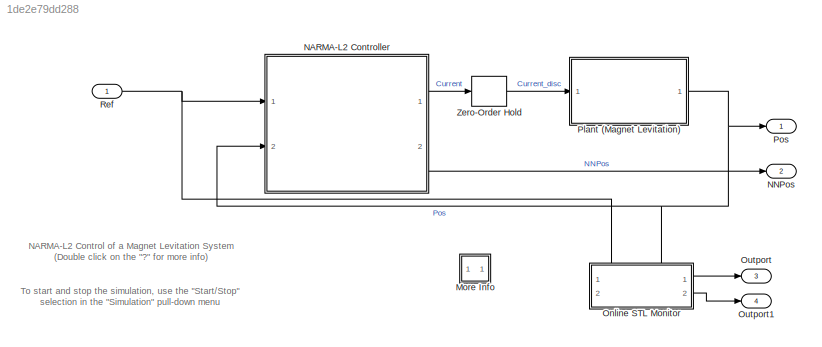
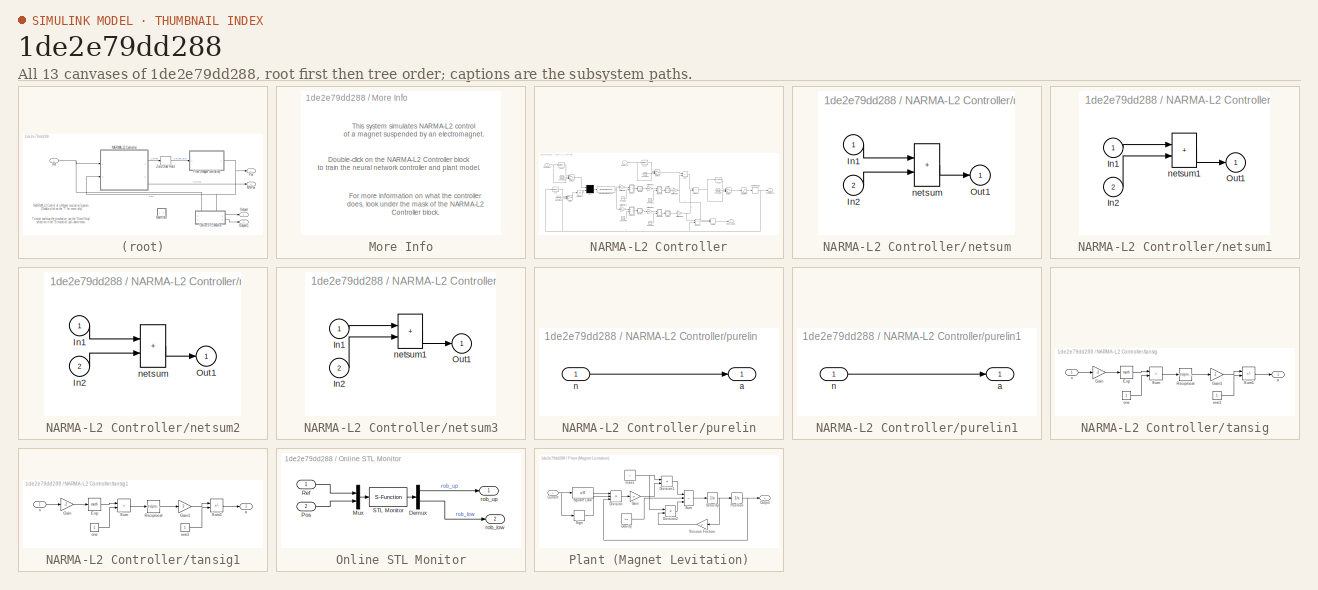
[diagram: thumbnail index - all 13 canvases of the model, root first then tree order]
MODEL slx_1de2e79dd288
KIND model
CONFIG AbsTol = 1e-6
CONFIG EnableMultiTasking = off
CONFIG FixedStep = auto
CONFIG MaxStep = auto
CONFIG MinStep = auto
CONFIG RelTol = 1e-3
CONFIG SampleTimeConstraint = Unconstrained
CONFIG SolverName = ode45
CONFIG StartTime = 0.0
CONFIG StopTime = 20
BLOCK [SubSystem] More Info
  Ports = []
  RequestExecContextInheritance = off
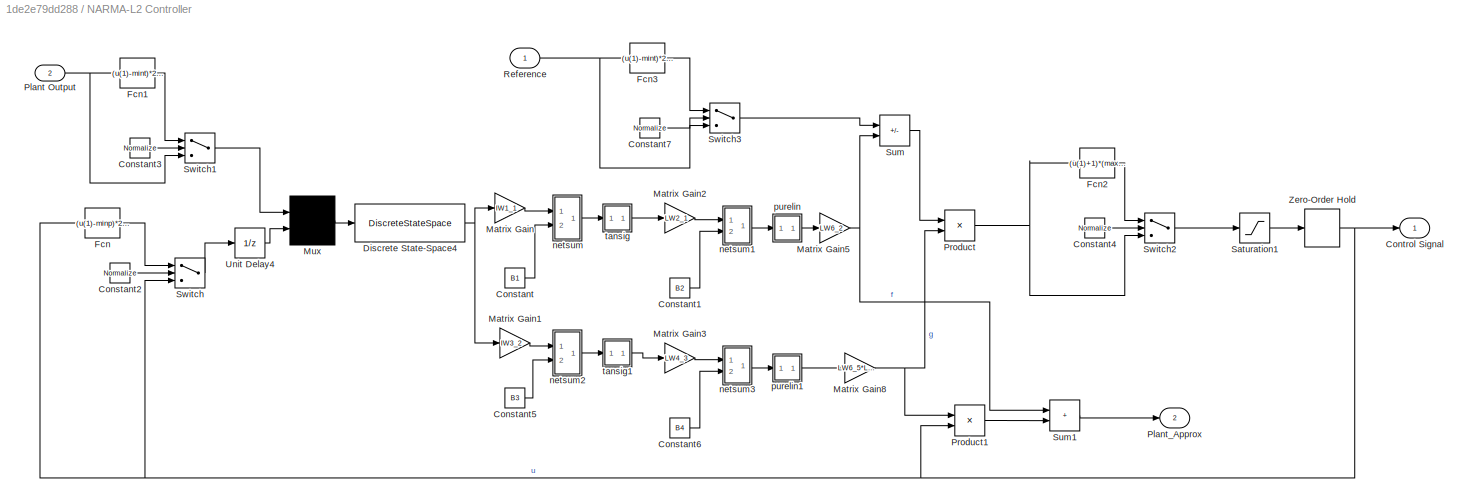
BLOCK [SubSystem] NARMA-L2 Controller
  NameLocation = top
  OpenFcn = nncontrolutil('nnident','',gcbh,gcb,'narma_l2');
  Ports = [2, 2]
  RequestExecContextInheritance = off
BLOCK [Constant] NARMA-L2 Controller/Constant
  Value = B1
BLOCK [Constant] NARMA-L2 Controller/Constant1
  Value = B2
BLOCK [Constant] NARMA-L2 Controller/Constant2
  Value = Normalize
BLOCK [Constant] NARMA-L2 Controller/Constant3
  Value = Normalize
BLOCK [Constant] NARMA-L2 Controller/Constant4
  Value = Normalize
BLOCK [Constant] NARMA-L2 Controller/Constant5
  Value = B3
BLOCK [Constant] NARMA-L2 Controller/Constant6
  Value = B4
BLOCK [Constant] NARMA-L2 Controller/Constant7
  Value = Normalize
BLOCK [Outport] NARMA-L2 Controller/Control Signal
BLOCK [DiscreteStateSpace] NARMA-L2 Controller/Discrete State-Space4
  A = blkdiag([zeros(1,Nj-1);eye(Nj-2,Nj-2) zeros(Nj-2,1)],[zeros(1,Ni-1);eye(Ni-2,Ni-2) zeros(Ni-2,1)])
  B = blkdiag(eye(Nj-1,1),eye(Ni-1,1))
  C = blkdiag([zeros(1,Nj-1);eye(Nj-1,Nj-1)],[zeros(eye(double(Ni>1)),Ni-1);eye(Ni-2,Ni-1)])
  D = blkdiag([1;zeros(Nj-1,1)],[eye(double(Ni>1));zeros(Ni-2,1)])
  SampleTime = Ts
BLOCK [Fcn] NARMA-L2 Controller/Fcn
  Expr = (u(1)-minp)*2/(maxp-minp) - 1
BLOCK [Fcn] NARMA-L2 Controller/Fcn1
  Expr = (u(1)-mint)*2/(maxt-mint) - 1
BLOCK [Fcn] NARMA-L2 Controller/Fcn2
  Expr = (u(1)+1)*(maxp-minp)/2 + minp
BLOCK [Fcn] NARMA-L2 Controller/Fcn3
  Expr = (u(1)-mint)*2/(maxt-mint) - 1
BLOCK [Gain] NARMA-L2 Controller/Matrix Gain
  Gain = IW1_1
  Multiplication = Matrix(K*u)
  OutDataTypeStr = Inherit: Same as input
  ParamDataTypeStr = Inherit: Same as input
  SaturateOnIntegerOverflow = on
BLOCK [Gain] NARMA-L2 Controller/Matrix Gain1
  Gain = IW3_2
  Multiplication = Matrix(K*u)
  OutDataTypeStr = Inherit: Same as input
  ParamDataTypeStr = Inherit: Same as input
  SaturateOnIntegerOverflow = on
BLOCK [Gain] NARMA-L2 Controller/Matrix Gain2
  Gain = LW2_1
  Multiplication = Matrix(K*u)
  OutDataTypeStr = Inherit: Same as input
  ParamDataTypeStr = Inherit: Same as input
  SaturateOnIntegerOverflow = on
BLOCK [Gain] NARMA-L2 Controller/Matrix Gain3
  Gain = LW4_3
  Multiplication = Matrix(K*u)
  OutDataTypeStr = Inherit: Same as input
  ParamDataTypeStr = Inherit: Same as input
  SaturateOnIntegerOverflow = on
BLOCK [Gain] NARMA-L2 Controller/Matrix Gain5
  Gain = LW6_2
  Multiplication = Matrix(K*u)
  OutDataTypeStr = Inherit: Same as input
  ParamDataTypeStr = Inherit: Same as input
  SaturateOnIntegerOverflow = on
BLOCK [Gain] NARMA-L2 Controller/Matrix Gain8
  Gain = LW6_5*LW5_4*IW5_3
  Multiplication = Matrix(K*u)
  OutDataTypeStr = Inherit: Same as input
  ParamDataTypeStr = Inherit: Same as input
  SaturateOnIntegerOverflow = on
BLOCK [Mux] NARMA-L2 Controller/Mux
  DisplayOption = signals
  Inputs = 2
  Ports = [2, 1]
BLOCK [Inport] NARMA-L2 Controller/Plant Output
  Port = 2
BLOCK [Outport] NARMA-L2 Controller/Plant_Approx
  Port = 2
BLOCK [Product] NARMA-L2 Controller/Product
  InputSameDT = on
  Inputs = */
  OutDataTypeStr = Inherit: Same as first input
  Ports = [2, 1]
  SaturateOnIntegerOverflow = on
BLOCK [Product] NARMA-L2 Controller/Product1
  InputSameDT = on
  OutDataTypeStr = Inherit: Same as first input
  Ports = [2, 1]
  SaturateOnIntegerOverflow = on
BLOCK [Inport] NARMA-L2 Controller/Reference
BLOCK [Saturate] NARMA-L2 Controller/Saturation1
  LowerLimit = min_i
  UpperLimit = max_i
  ZeroCross = off
BLOCK [Sum] NARMA-L2 Controller/Sum
  IconShape = rectangular
  InputSameDT = on
  Inputs = +-
  OutDataTypeStr = Inherit: Same as first input
  Ports = [2, 1]
  SaturateOnIntegerOverflow = on
BLOCK [Sum] NARMA-L2 Controller/Sum1
  IconShape = rectangular
  InputSameDT = on
  OutDataTypeStr = Inherit: Same as first input
  Ports = [2, 1]
  SaturateOnIntegerOverflow = on
BLOCK [Switch] NARMA-L2 Controller/Switch
  Threshold = 0.5
  ZeroCross = off
BLOCK [Switch] NARMA-L2 Controller/Switch1
  Threshold = 0.5
  ZeroCross = off
BLOCK [Switch] NARMA-L2 Controller/Switch2
  Threshold = 0.5
  ZeroCross = off
BLOCK [Switch] NARMA-L2 Controller/Switch3
  Threshold = 0.5
  ZeroCross = off
BLOCK [UnitDelay] NARMA-L2 Controller/Unit Delay4
  HasFrameUpgradeWarning = on
  SampleTime = Ts
BLOCK [ZeroOrderHold] NARMA-L2 Controller/Zero-Order Hold
  SampleTime = Ts
BLOCK [SubSystem] NARMA-L2 Controller/netsum
  Ports = [2, 1]
  RequestExecContextInheritance = off
BLOCK [Inport] NARMA-L2 Controller/netsum/In1
BLOCK [Inport] NARMA-L2 Controller/netsum/In2
  Port = 2
BLOCK [Outport] NARMA-L2 Controller/netsum/Out1
BLOCK [Sum] NARMA-L2 Controller/netsum/netsum
  IconShape = rectangular
  InputSameDT = on
  Inputs = 2
  OutDataTypeStr = Inherit: Same as first input
  Ports = [2, 1]
  SaturateOnIntegerOverflow = on
BLOCK [SubSystem] NARMA-L2 Controller/netsum1
  Ports = [2, 1]
  RequestExecContextInheritance = off
BLOCK [Inport] NARMA-L2 Controller/netsum1/In1
BLOCK [Inport] NARMA-L2 Controller/netsum1/In2
  Port = 2
BLOCK [Outport] NARMA-L2 Controller/netsum1/Out1
BLOCK [Sum] NARMA-L2 Controller/netsum1/netsum1
  IconShape = rectangular
  InputSameDT = on
  Inputs = 2
  OutDataTypeStr = Inherit: Same as first input
  Ports = [2, 1]
  SaturateOnIntegerOverflow = on
BLOCK [SubSystem] NARMA-L2 Controller/netsum2
  Ports = [2, 1]
  RequestExecContextInheritance = off
BLOCK [Inport] NARMA-L2 Controller/netsum2/In1
BLOCK [Inport] NARMA-L2 Controller/netsum2/In2
  Port = 2
BLOCK [Outport] NARMA-L2 Controller/netsum2/Out1
BLOCK [Sum] NARMA-L2 Controller/netsum2/netsum
  IconShape = rectangular
  InputSameDT = on
  Inputs = 2
  OutDataTypeStr = Inherit: Same as first input
  Ports = [2, 1]
  SaturateOnIntegerOverflow = on
BLOCK [SubSystem] NARMA-L2 Controller/netsum3
  Ports = [2, 1]
  RequestExecContextInheritance = off
BLOCK [Inport] NARMA-L2 Controller/netsum3/In1
BLOCK [Inport] NARMA-L2 Controller/netsum3/In2
  Port = 2
BLOCK [Outport] NARMA-L2 Controller/netsum3/Out1
BLOCK [Sum] NARMA-L2 Controller/netsum3/netsum1
  IconShape = rectangular
  InputSameDT = on
  Inputs = 2
  OutDataTypeStr = Inherit: Same as first input
  Ports = [2, 1]
  SaturateOnIntegerOverflow = on
BLOCK [SubSystem] NARMA-L2 Controller/purelin
  Ports = [1, 1]
  RequestExecContextInheritance = off
BLOCK [Outport] NARMA-L2 Controller/purelin/a
BLOCK [Inport] NARMA-L2 Controller/purelin/n
BLOCK [SubSystem] NARMA-L2 Controller/purelin1
  Ports = [1, 1]
  RequestExecContextInheritance = off
BLOCK [Outport] NARMA-L2 Controller/purelin1/a
BLOCK [Inport] NARMA-L2 Controller/purelin1/n
BLOCK [SubSystem] NARMA-L2 Controller/tansig
  Ports = [1, 1]
  RequestExecContextInheritance = off
BLOCK [Math] NARMA-L2 Controller/tansig/Exp
  Ports = [1, 1]
  SignedPower = on
BLOCK [Gain] NARMA-L2 Controller/tansig/Gain
  Gain = -2
  OutDataTypeStr = Inherit: Same as input
  ParamDataTypeStr = Inherit: Same as input
  SaturateOnIntegerOverflow = on
BLOCK [Gain] NARMA-L2 Controller/tansig/Gain1
  Gain = 2
  OutDataTypeStr = Inherit: Same as input
  ParamDataTypeStr = Inherit: Same as input
  SaturateOnIntegerOverflow = on
BLOCK [Math] NARMA-L2 Controller/tansig/Reciprocal
  Operator = reciprocal
  Ports = [1, 1]
  SignedPower = on
BLOCK [Sum] NARMA-L2 Controller/tansig/Sum
  IconShape = rectangular
  InputSameDT = on
  OutDataTypeStr = Inherit: Same as first input
  Ports = [2, 1]
  SaturateOnIntegerOverflow = on
BLOCK [Sum] NARMA-L2 Controller/tansig/Sum1
  IconShape = rectangular
  InputSameDT = on
  Inputs = +-
  OutDataTypeStr = Inherit: Same as first input
  Ports = [2, 1]
  SaturateOnIntegerOverflow = on
BLOCK [Outport] NARMA-L2 Controller/tansig/a
BLOCK [Inport] NARMA-L2 Controller/tansig/n
BLOCK [Constant] NARMA-L2 Controller/tansig/one
BLOCK [Constant] NARMA-L2 Controller/tansig/one1
BLOCK [SubSystem] NARMA-L2 Controller/tansig1
  Ports = [1, 1]
  RequestExecContextInheritance = off
BLOCK [Math] NARMA-L2 Controller/tansig1/Exp
  Ports = [1, 1]
  SignedPower = on
BLOCK [Gain] NARMA-L2 Controller/tansig1/Gain
  Gain = -2
  OutDataTypeStr = Inherit: Same as input
  ParamDataTypeStr = Inherit: Same as input
  SaturateOnIntegerOverflow = on
BLOCK [Gain] NARMA-L2 Controller/tansig1/Gain1
  Gain = 2
  OutDataTypeStr = Inherit: Same as input
  ParamDataTypeStr = Inherit: Same as input
  SaturateOnIntegerOverflow = on
BLOCK [Math] NARMA-L2 Controller/tansig1/Reciprocal
  Operator = reciprocal
  Ports = [1, 1]
  SignedPower = on
BLOCK [Sum] NARMA-L2 Controller/tansig1/Sum
  IconShape = rectangular
  InputSameDT = on
  OutDataTypeStr = Inherit: Same as first input
  Ports = [2, 1]
  SaturateOnIntegerOverflow = on
BLOCK [Sum] NARMA-L2 Controller/tansig1/Sum1
  IconShape = rectangular
  InputSameDT = on
  Inputs = +-
  OutDataTypeStr = Inherit: Same as first input
  Ports = [2, 1]
  SaturateOnIntegerOverflow = on
BLOCK [Outport] NARMA-L2 Controller/tansig1/a
BLOCK [Inport] NARMA-L2 Controller/tansig1/n
BLOCK [Constant] NARMA-L2 Controller/tansig1/one
BLOCK [Constant] NARMA-L2 Controller/tansig1/one1
BLOCK [Outport] NNPos
  Port = 2
BLOCK [SubSystem] Online STL Monitor
  PortSchema = {"entries":[{"content":{"sides":[{"content":{"connectorIds":[]},"type":"ConnectorPlacement.EquallySpacedRectSide","uuid":"8f4305c2-e8bb-4ba0-845c-1deda9a3c401"},{"content":{"connectorIds":["Out1","Out2"],"side":"RIGHT"},"type":"ConnectorPlacement.EquallySpacedRectSide","uuid":"4a585272-13b5-43f0-bdad-577a82dc99a3"},{"content":{"connectorIds":["In1","In2"],"side":"TOP"},"type":"ConnectorPlacement.E...<+253ch>
  Ports = [2, 2]
  RequestExecContextInheritance = off
BLOCK [Demux] Online STL Monitor/Demux
  Outputs = 2
  Ports = [1, 2]
BLOCK [Mux] Online STL Monitor/Mux
  DisplayOption = bar
  Inputs = 2
  Ports = [2, 1]
BLOCK [Inport] Online STL Monitor/Pos
  Port = 2
BLOCK [Inport] Online STL Monitor/Ref
BLOCK [S-Function] Online STL Monitor/STL Monitor
  EnableBusSupport = off
  FunctionName = onlineMonitorWrapper
  Parameters = SignalNames, STLString, MaxRob, Refresh, Diagnose
  Ports = [1, 1]
  SFcnIsStateOwnerBlock = off
  SFunctionDeploymentMode = off
BLOCK [Outport] Online STL Monitor/rob_low
  Port = 2
BLOCK [Outport] Online STL Monitor/rob_up
BLOCK [Outport] Outport
  Port = 3
BLOCK [Outport] Outport1
  Port = 4
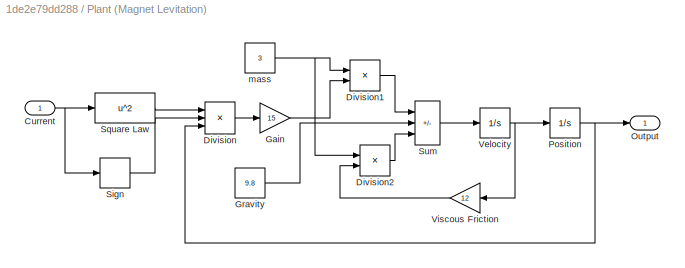
BLOCK [SubSystem] Plant (Magnet Levitation)
  Ports = [1, 1]
  RequestExecContextInheritance = off
BLOCK [Inport] Plant (Magnet Levitation)/Current
BLOCK [Product] Plant (Magnet Levitation)/Division
  InputSameDT = on
  Inputs = **/
  OutDataTypeStr = Inherit: Same as first input
  Ports = [3, 1]
  SaturateOnIntegerOverflow = on
BLOCK [Product] Plant (Magnet Levitation)/Division1
  InputSameDT = on
  Inputs = /*
  OutDataTypeStr = Inherit: Same as first input
  Ports = [2, 1]
  SaturateOnIntegerOverflow = on
BLOCK [Product] Plant (Magnet Levitation)/Division2
  InputSameDT = on
  Inputs = /*
  OutDataTypeStr = Inherit: Same as first input
  Ports = [2, 1]
  SaturateOnIntegerOverflow = on
BLOCK [Gain] Plant (Magnet Levitation)/Gain
  Gain = 15
  OutDataTypeStr = Inherit: Same as input
  ParamDataTypeStr = Inherit: Same as input
  SaturateOnIntegerOverflow = on
BLOCK [Constant] Plant (Magnet Levitation)/Gravity
  Value = 9.8
BLOCK [Outport] Plant (Magnet Levitation)/Output
BLOCK [Integrator] Plant (Magnet Levitation)/Position
  InitialCondition = .5
  Ports = [1, 1]
  ZeroCross = off
BLOCK [Signum] Plant (Magnet Levitation)/Sign
  ZeroCross = off
BLOCK [Fcn] Plant (Magnet Levitation)/Square Law
  Expr = u^2
BLOCK [Sum] Plant (Magnet Levitation)/Sum
  IconShape = rectangular
  InputSameDT = on
  Inputs = |+--
  OutDataTypeStr = Inherit: Same as first input
  Ports = [3, 1]
  SaturateOnIntegerOverflow = on
BLOCK [Integrator] Plant (Magnet Levitation)/Velocity
  Ports = [1, 1]
  ZeroCross = off
BLOCK [Gain] Plant (Magnet Levitation)/Viscous Friction
  Gain = 12
  OutDataTypeStr = Inherit: Same as input
  ParamDataTypeStr = Inherit: Same as input
  SaturateOnIntegerOverflow = on
BLOCK [Constant] Plant (Magnet Levitation)/mass
  Value = 3
BLOCK [Outport] Pos
BLOCK [Inport] Ref
BLOCK [ZeroOrderHold] Zero-Order Hold
  SampleTime = u_ts
ANNOTATION (root): NARMA-L2 Control of a Magnet Levitation System (Double click on the "?" for more info)
ANNOTATION (root): To start and stop the simulation, use the "Start/Stop" selection in the "Simulation" pull-down menu
ANNOTATION More Info: Double-click on the NARMA-L2 Controller block to train the neural network controller and plant model.
ANNOTATION More Info: For more information on what the controller does, look under the mask of the NARMA-L2 Controller block.
ANNOTATION More Info: This system simulates NARMA-L2 control of a magnet suspended by an electromagnet.
LINE NARMA-L2 Controller/Constant1:1 -> NARMA-L2 Controller/netsum1:2
LINE NARMA-L2 Controller/Constant2:1 -> NARMA-L2 Controller/Switch:2
LINE NARMA-L2 Controller/Constant3:1 -> NARMA-L2 Controller/Switch1:2
LINE NARMA-L2 Controller/Constant4:1 -> NARMA-L2 Controller/Switch2:2
LINE NARMA-L2 Controller/Constant5:1 -> NARMA-L2 Controller/netsum2:2
LINE NARMA-L2 Controller/Constant6:1 -> NARMA-L2 Controller/netsum3:2
LINE NARMA-L2 Controller/Constant7:1 -> NARMA-L2 Controller/Switch3:2
LINE NARMA-L2 Controller/Constant:1 -> NARMA-L2 Controller/netsum:2
NET NARMA-L2 Controller/Discrete State-Space4:1 -> NARMA-L2 Controller/Matrix Gain1:1, NARMA-L2 Controller/Matrix Gain:1
LINE NARMA-L2 Controller/Fcn1:1 -> NARMA-L2 Controller/Switch1:1
LINE NARMA-L2 Controller/Fcn2:1 -> NARMA-L2 Controller/Switch2:1
LINE NARMA-L2 Controller/Fcn3:1 -> NARMA-L2 Controller/Switch3:1
LINE NARMA-L2 Controller/Fcn:1 -> NARMA-L2 Controller/Switch:1
LINE NARMA-L2 Controller/Matrix Gain1:1 -> NARMA-L2 Controller/netsum2:1
LINE NARMA-L2 Controller/Matrix Gain2:1 -> NARMA-L2 Controller/netsum1:1
LINE NARMA-L2 Controller/Matrix Gain3:1 -> NARMA-L2 Controller/netsum3:1
NET NARMA-L2 Controller/Matrix Gain5:1 -> NARMA-L2 Controller/Sum1:1, NARMA-L2 Controller/Sum:2
NET NARMA-L2 Controller/Matrix Gain8:1 -> NARMA-L2 Controller/Product1:1, NARMA-L2 Controller/Product:2
LINE NARMA-L2 Controller/Matrix Gain:1 -> NARMA-L2 Controller/netsum:1
LINE NARMA-L2 Controller/Mux:1 -> NARMA-L2 Controller/Discrete State-Space4:1
NET NARMA-L2 Controller/Plant Output:1 -> NARMA-L2 Controller/Fcn1:1, NARMA-L2 Controller/Switch1:3
LINE NARMA-L2 Controller/Product1:1 -> NARMA-L2 Controller/Sum1:2
NET NARMA-L2 Controller/Product:1 -> NARMA-L2 Controller/Fcn2:1, NARMA-L2 Controller/Switch2:3
NET NARMA-L2 Controller/Reference:1 -> NARMA-L2 Controller/Fcn3:1, NARMA-L2 Controller/Switch3:3
LINE NARMA-L2 Controller/Saturation1:1 -> NARMA-L2 Controller/Zero-Order Hold:1
LINE NARMA-L2 Controller/Sum1:1 -> NARMA-L2 Controller/Plant_Approx:1
LINE NARMA-L2 Controller/Sum:1 -> NARMA-L2 Controller/Product:1
LINE NARMA-L2 Controller/Switch1:1 -> NARMA-L2 Controller/Mux:1
LINE NARMA-L2 Controller/Switch2:1 -> NARMA-L2 Controller/Saturation1:1
LINE NARMA-L2 Controller/Switch3:1 -> NARMA-L2 Controller/Sum:1
LINE NARMA-L2 Controller/Switch:1 -> NARMA-L2 Controller/Unit Delay4:1
LINE NARMA-L2 Controller/Unit Delay4:1 -> NARMA-L2 Controller/Mux:2
NET NARMA-L2 Controller/Zero-Order Hold:1 -> NARMA-L2 Controller/Control Signal:1, NARMA-L2 Controller/Fcn:1, NARMA-L2 Controller/Product1:2, NARMA-L2 Controller/Switch:3
LINE NARMA-L2 Controller/netsum/In1:1 -> NARMA-L2 Controller/netsum/netsum:1
LINE NARMA-L2 Controller/netsum/In2:1 -> NARMA-L2 Controller/netsum/netsum:2
LINE NARMA-L2 Controller/netsum/netsum:1 -> NARMA-L2 Controller/netsum/Out1:1
LINE NARMA-L2 Controller/netsum1/In1:1 -> NARMA-L2 Controller/netsum1/netsum1:1
LINE NARMA-L2 Controller/netsum1/In2:1 -> NARMA-L2 Controller/netsum1/netsum1:2
LINE NARMA-L2 Controller/netsum1/netsum1:1 -> NARMA-L2 Controller/netsum1/Out1:1
LINE NARMA-L2 Controller/netsum1:1 -> NARMA-L2 Controller/purelin:1
LINE NARMA-L2 Controller/netsum2/In1:1 -> NARMA-L2 Controller/netsum2/netsum:1
LINE NARMA-L2 Controller/netsum2/In2:1 -> NARMA-L2 Controller/netsum2/netsum:2
LINE NARMA-L2 Controller/netsum2/netsum:1 -> NARMA-L2 Controller/netsum2/Out1:1
LINE NARMA-L2 Controller/netsum2:1 -> NARMA-L2 Controller/tansig1:1
LINE NARMA-L2 Controller/netsum3/In1:1 -> NARMA-L2 Controller/netsum3/netsum1:1
LINE NARMA-L2 Controller/netsum3/In2:1 -> NARMA-L2 Controller/netsum3/netsum1:2
LINE NARMA-L2 Controller/netsum3/netsum1:1 -> NARMA-L2 Controller/netsum3/Out1:1
LINE NARMA-L2 Controller/netsum3:1 -> NARMA-L2 Controller/purelin1:1
LINE NARMA-L2 Controller/netsum:1 -> NARMA-L2 Controller/tansig:1
LINE NARMA-L2 Controller/purelin/n:1 -> NARMA-L2 Controller/purelin/a:1
LINE NARMA-L2 Controller/purelin1/n:1 -> NARMA-L2 Controller/purelin1/a:1
LINE NARMA-L2 Controller/purelin1:1 -> NARMA-L2 Controller/Matrix Gain8:1
LINE NARMA-L2 Controller/purelin:1 -> NARMA-L2 Controller/Matrix Gain5:1
LINE NARMA-L2 Controller/tansig/Exp:1 -> NARMA-L2 Controller/tansig/Sum:1
LINE NARMA-L2 Controller/tansig/Gain1:1 -> NARMA-L2 Controller/tansig/Sum1:1
LINE NARMA-L2 Controller/tansig/Gain:1 -> NARMA-L2 Controller/tansig/Exp:1
LINE NARMA-L2 Controller/tansig/Reciprocal:1 -> NARMA-L2 Controller/tansig/Gain1:1
LINE NARMA-L2 Controller/tansig/Sum1:1 -> NARMA-L2 Controller/tansig/a:1
LINE NARMA-L2 Controller/tansig/Sum:1 -> NARMA-L2 Controller/tansig/Reciprocal:1
LINE NARMA-L2 Controller/tansig/n:1 -> NARMA-L2 Controller/tansig/Gain:1
LINE NARMA-L2 Controller/tansig/one1:1 -> NARMA-L2 Controller/tansig/Sum1:2
LINE NARMA-L2 Controller/tansig/one:1 -> NARMA-L2 Controller/tansig/Sum:2
LINE NARMA-L2 Controller/tansig1/Exp:1 -> NARMA-L2 Controller/tansig1/Sum:1
LINE NARMA-L2 Controller/tansig1/Gain1:1 -> NARMA-L2 Controller/tansig1/Sum1:1
LINE NARMA-L2 Controller/tansig1/Gain:1 -> NARMA-L2 Controller/tansig1/Exp:1
LINE NARMA-L2 Controller/tansig1/Reciprocal:1 -> NARMA-L2 Controller/tansig1/Gain1:1
LINE NARMA-L2 Controller/tansig1/Sum1:1 -> NARMA-L2 Controller/tansig1/a:1
LINE NARMA-L2 Controller/tansig1/Sum:1 -> NARMA-L2 Controller/tansig1/Reciprocal:1
LINE NARMA-L2 Controller/tansig1/n:1 -> NARMA-L2 Controller/tansig1/Gain:1
LINE NARMA-L2 Controller/tansig1/one1:1 -> NARMA-L2 Controller/tansig1/Sum1:2
LINE NARMA-L2 Controller/tansig1/one:1 -> NARMA-L2 Controller/tansig1/Sum:2
LINE NARMA-L2 Controller/tansig1:1 -> NARMA-L2 Controller/Matrix Gain3:1
LINE NARMA-L2 Controller/tansig:1 -> NARMA-L2 Controller/Matrix Gain2:1
LINE NARMA-L2 Controller:1 -> Zero-Order Hold:1
LINE NARMA-L2 Controller:2 -> NNPos:1
LINE Online STL Monitor/Demux:1 -> Online STL Monitor/rob_up:1
LINE Online STL Monitor/Demux:2 -> Online STL Monitor/rob_low:1
LINE Online STL Monitor/Mux:1 -> Online STL Monitor/STL Monitor:1
LINE Online STL Monitor/Pos:1 -> Online STL Monitor/Mux:2
LINE Online STL Monitor/Ref:1 -> Online STL Monitor/Mux:1
LINE Online STL Monitor/STL Monitor:1 -> Online STL Monitor/Demux:1
LINE Online STL Monitor:1 -> Outport:1
LINE Online STL Monitor:2 -> Outport1:1
NET Plant (Magnet Levitation)/Current:1 -> Plant (Magnet Levitation)/Sign:1, Plant (Magnet Levitation)/Square Law:1
LINE Plant (Magnet Levitation)/Division1:1 -> Plant (Magnet Levitation)/Sum:1
LINE Plant (Magnet Levitation)/Division2:1 -> Plant (Magnet Levitation)/Sum:3
LINE Plant (Magnet Levitation)/Division:1 -> Plant (Magnet Levitation)/Gain:1
LINE Plant (Magnet Levitation)/Gain:1 -> Plant (Magnet Levitation)/Division1:2
LINE Plant (Magnet Levitation)/Gravity:1 -> Plant (Magnet Levitation)/Sum:2
NET Plant (Magnet Levitation)/Position:1 -> Plant (Magnet Levitation)/Division:3, Plant (Magnet Levitation)/Output:1
LINE Plant (Magnet Levitation)/Sign:1 -> Plant (Magnet Levitation)/Division:2
LINE Plant (Magnet Levitation)/Square Law:1 -> Plant (Magnet Levitation)/Division:1
LINE Plant (Magnet Levitation)/Sum:1 -> Plant (Magnet Levitation)/Velocity:1
NET Plant (Magnet Levitation)/Velocity:1 -> Plant (Magnet Levitation)/Position:1, Plant (Magnet Levitation)/Viscous Friction:1
LINE Plant (Magnet Levitation)/Viscous Friction:1 -> Plant (Magnet Levitation)/Division2:2
NET Plant (Magnet Levitation)/mass:1 -> Plant (Magnet Levitation)/Division1:1, Plant (Magnet Levitation)/Division2:1
NET Plant (Magnet Levitation):1 -> NARMA-L2 Controller:2, Online STL Monitor:2, Pos:1
NET Ref:1 -> NARMA-L2 Controller:1, Online STL Monitor:1
LINE Zero-Order Hold:1 -> Plant (Magnet Levitation):1
note: NET lines group one-source signal fan-out (src -> all destinations, sorted); 1:1 wires keep LINE
